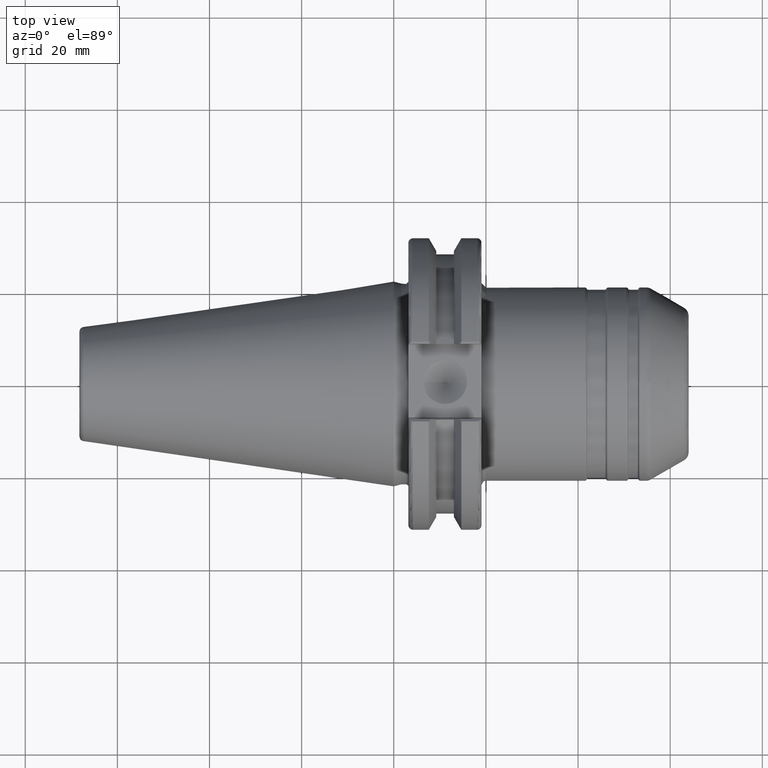
[diagram: clean part render]
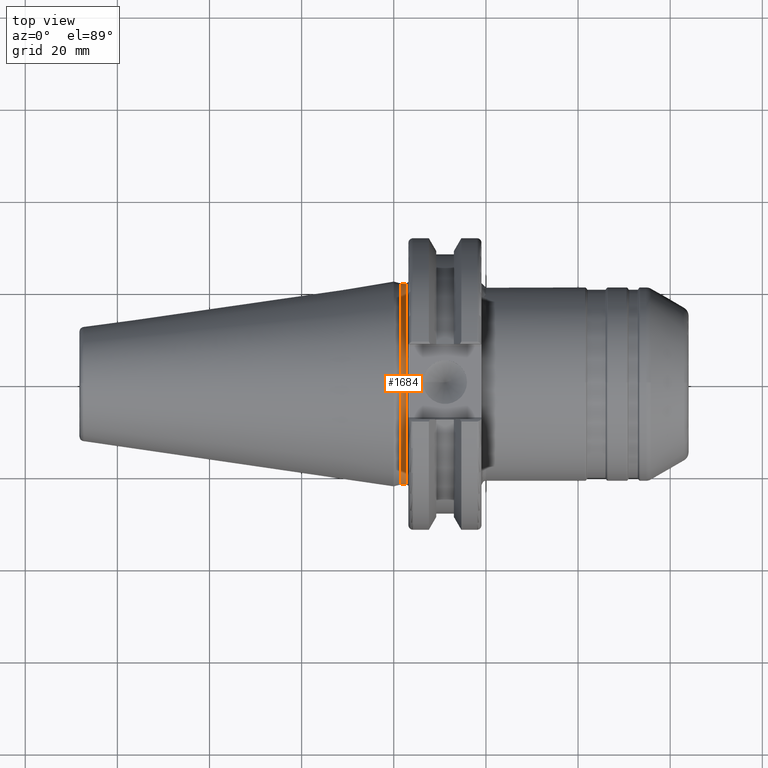
[diagram: same view with one face highlighted and labeled with its STEP entity id]
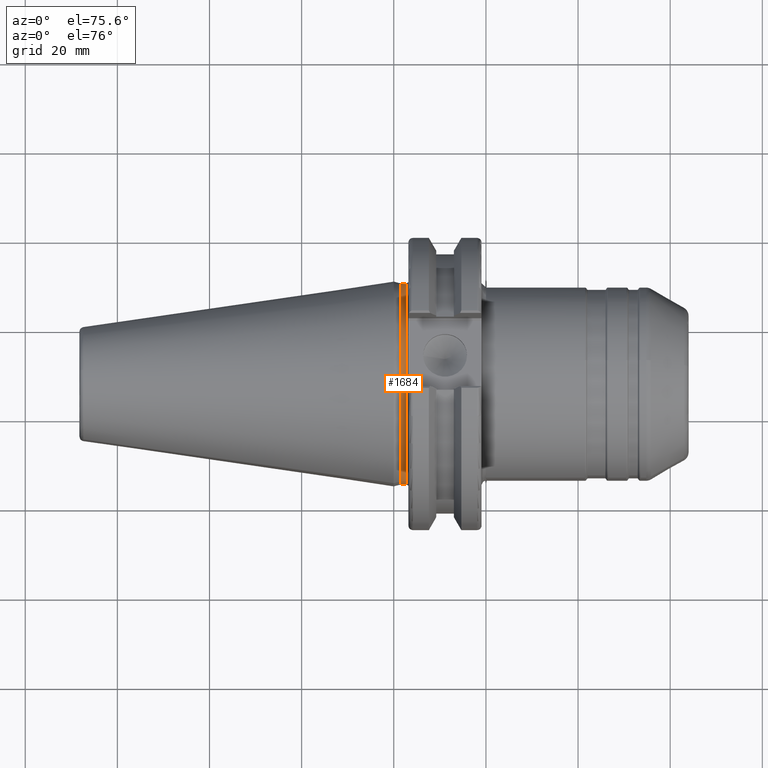
[diagram: same view with one face highlighted and labeled with its STEP entity id]
A machine part, top view. The second image highlights one B-rep face of the part: STEP entity #1684.
A second angle (auxiliary view) of the same face is appended — the face is thin or edge-on in the first view.
In plain terms, the highlighted cylindrical surface (bore or boss wall) has radius 21.8 mm, axis along (1, 0, 0).
Its self-contained STEP definition (entity closure, byte-faithful):
#187=LINE('',#2944,#279);
#279=VECTOR('',#2335,21.8);
#343=CYLINDRICAL_SURFACE('',#1905,21.8);
#402=FACE_OUTER_BOUND('',#511,.T.);
#511=EDGE_LOOP('',(#1386,#1387,#1388,#1389,#1390));
#636=CIRCLE('',#1898,21.8);
#639=CIRCLE('',#1901,21.8);
#642=CIRCLE('',#1906,21.8);
#766=VERTEX_POINT('',#2910);
#767=VERTEX_POINT('',#2911);
#781=VERTEX_POINT('',#2943);
#981=EDGE_CURVE('',#766,#767,#636,.T.);
#984=EDGE_CURVE('',#767,#766,#639,.T.);
#997=EDGE_CURVE('',#766,#781,#187,.T.);
#998=EDGE_CURVE('',#781,#781,#642,.T.);
#1386=ORIENTED_EDGE('',*,*,#981,.F.);
#1387=ORIENTED_EDGE('',*,*,#997,.T.);
#1388=ORIENTED_EDGE('',*,*,#998,.T.);
#1389=ORIENTED_EDGE('',*,*,#997,.F.);
#1390=ORIENTED_EDGE('',*,*,#984,.F.);
#1684=ADVANCED_FACE('',(#402),#343,.T.);
#1898=AXIS2_PLACEMENT_3D('',#2912,#2309,#2310);
#1901=AXIS2_PLACEMENT_3D('',#2916,#2315,#2316);
#1905=AXIS2_PLACEMENT_3D('',#2942,#2333,#2334);
#1906=AXIS2_PLACEMENT_3D('',#2945,#2336,#2337);
#2309=DIRECTION('center_axis',(1.,0.,0.));
#2310=DIRECTION('ref_axis',(0.,-1.,1.83697019872103E-16));
#2315=DIRECTION('center_axis',(1.,0.,0.));
#2316=DIRECTION('ref_axis',(0.,-1.,1.83697019872103E-16));
#2333=DIRECTION('center_axis',(1.,0.,0.));
#2334=DIRECTION('ref_axis',(0.,1.,0.));
#2335=DIRECTION('',(-1.,0.,0.));
#2336=DIRECTION('center_axis',(1.,0.,0.));
#2337=DIRECTION('ref_axis',(0.,0.,-1.));
#2910=CARTESIAN_POINT('',(2.675,-21.8,-2.66973002214123E-15));
#2911=CARTESIAN_POINT('',(2.675,-2.66973002214123E-15,21.8));
#2912=CARTESIAN_POINT('Origin',(2.675,0.,0.));
#2916=CARTESIAN_POINT('Origin',(2.675,0.,0.));
#2942=CARTESIAN_POINT('Origin',(2.38056079660838,0.,0.));
#2943=CARTESIAN_POINT('',(1.58612159321676,-21.8,-2.66973002214123E-15));
#2944=CARTESIAN_POINT('',(2.38056079660838,-21.8,-2.66973002214123E-15));
#2945=CARTESIAN_POINT('Origin',(1.58612159321676,0.,0.));